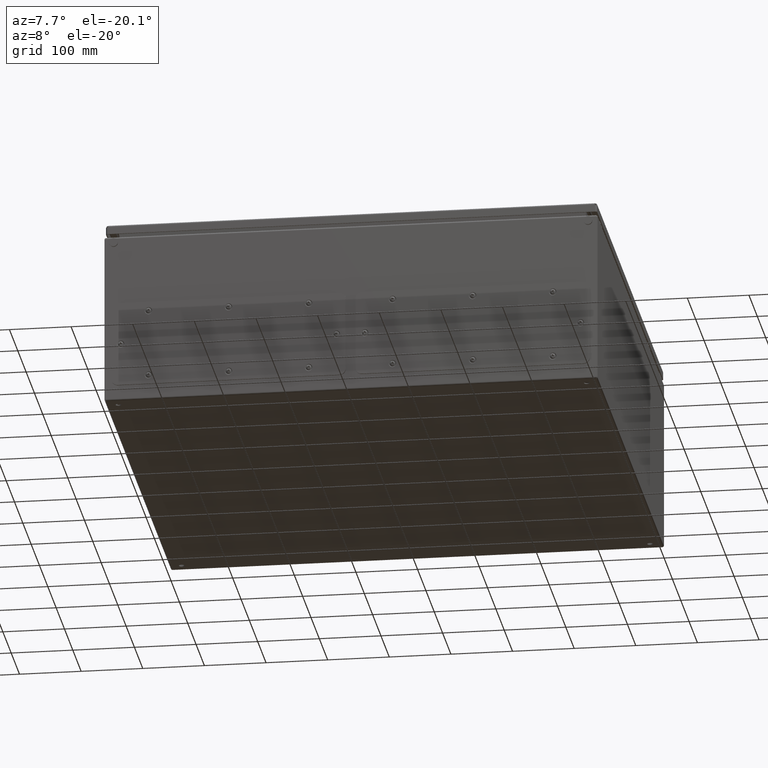
[diagram: clean part render]
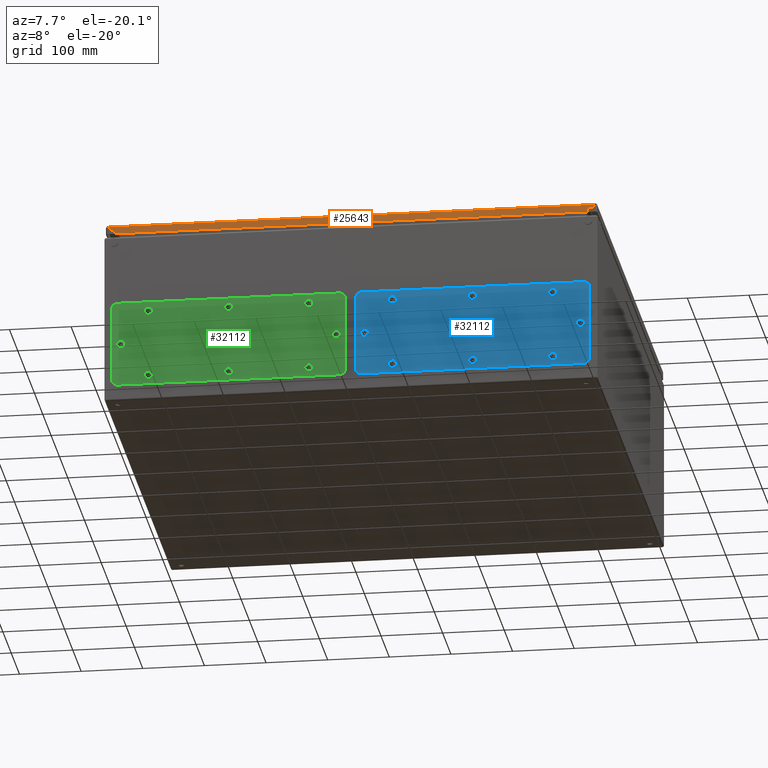
[diagram: same view with three faces highlighted in distinct colors, each labeled with its STEP entity id]
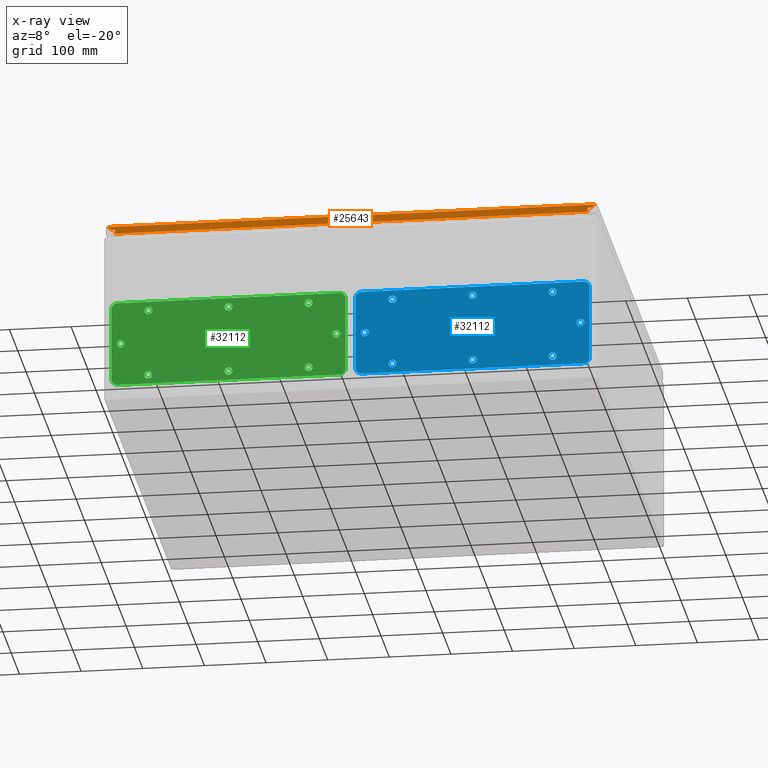
[diagram: x-ray of the same camera — body ghosted, the three highlighted faces saturated]
A machine part, auxiliary view with three faces highlighted in distinct colors.
The next image is the same camera in x-ray (body ghosted, the three faces saturated) — at least one of them is partly hidden behind the body in this view.
Their STEP definitions:

[orange] entity #25643 — the highlighted planar face has unit normal (0, 1, 0).
#24883 = CARTESIAN_POINT ( 'NONE',  ( 390.2500000000002300, -398.4999999999998300, 8.249999999999868500 ) ) ;
#25097 = DIRECTION ( 'NONE',  ( -0.7071067811865476800, 2.373230826650444500E-015, 0.7071067811865474600 ) ) ;
#25099 = VECTOR ( 'NONE', #25097, 1000.000000000000000 ) ;
#25101 = CARTESIAN_POINT ( 'NONE',  ( 397.0000000000002300, -398.4999999999998300, 1.499999999999945800 ) ) ;
#25103 = LINE ( 'NONE', #25101, #25099 ) ;
#25120 = DIRECTION ( 'NONE',  ( -1.352281394184117800E-016, 3.491483361109382100E-015, 1.000000000000000000 ) ) ;
#25121 = VECTOR ( 'NONE', #25120, 1000.000000000000000 ) ;
#25123 = CARTESIAN_POINT ( 'NONE',  ( 383.5000000000002300, -398.4999999999998300, 8.249999999999978700 ) ) ;
#25124 = LINE ( 'NONE', #25123, #25121 ) ;
#25130 = CARTESIAN_POINT ( 'NONE',  ( 383.5000000000002300, -398.4999999999997700, 14.99999999999995700 ) ) ;
#25155 = CARTESIAN_POINT ( 'NONE',  ( 395.2322330470335600, -398.4999999999998300, 3.267766952966599800 ) ) ;
#25199 = DIRECTION ( 'NONE',  ( -1.000000000000000000, -1.352281394184117800E-016, -1.352281394184113100E-016 ) ) ;
#25201 = VECTOR ( 'NONE', #25199, 1000.000000000000000 ) ;
#25203 = CARTESIAN_POINT ( 'NONE',  ( 390.2500000000002300, -398.4999999999998300, 8.249999999999978700 ) ) ;
#25204 = LINE ( 'NONE', #25203, #25201 ) ;
#25208 = CARTESIAN_POINT ( 'NONE',  ( 383.5000000000002300, -398.4999999999998300, 8.249999999999978700 ) ) ;
#25261 = DIRECTION ( 'NONE',  ( 0.7071067811865474600, 2.564472295430442400E-015, 0.7071067811865476800 ) ) ;
#25263 = VECTOR ( 'NONE', #25261, 1000.000000000000000 ) ;
#25264 = CARTESIAN_POINT ( 'NONE',  ( -397.0000000000002300, -398.4999999999999400, 1.499999999999834800 ) ) ;
#25266 = LINE ( 'NONE', #25264, #25263 ) ;
#25272 = CARTESIAN_POINT ( 'NONE',  ( -395.2322330470335600, -398.4999999999999400, 3.267766952966488800 ) ) ;
#25303 = LINE ( 'NONE', #25444, #25442 ) ;
#25306 = CARTESIAN_POINT ( 'NONE',  ( -383.5000000000002300, -398.4999999999998900, 14.99999999999984700 ) ) ;
#25349 = CARTESIAN_POINT ( 'NONE',  ( -390.2500000000002300, -398.4999999999999400, 8.249999999999868500 ) ) ;
#25351 = DIRECTION ( 'NONE',  ( 1.000000000000000000, 1.352281394184117800E-016, 1.352281394184113100E-016 ) ) ;
#25352 = VECTOR ( 'NONE', #25351, 1000.000000000000000 ) ;
#25354 = CARTESIAN_POINT ( 'NONE',  ( -390.2500000000002300, -398.4999999999999400, 8.249999999999868500 ) ) ;
#25355 = LINE ( 'NONE', #25354, #25352 ) ;
#25370 = DIRECTION ( 'NONE',  ( -1.352281394184113100E-016, 1.000000000000000000, -3.491483361109382100E-015 ) ) ;
#25372 = CARTESIAN_POINT ( 'NONE',  ( 396.9999999999998300, -398.4999999999998300, 1.500000000000112400 ) ) ;
#25373 = AXIS2_PLACEMENT_3D ( 'NONE', #25372, #25370, #25516 ) ;
#25375 = CIRCLE ( 'NONE', #25373, 2.500000000000002200 ) ;
#25378 = VERTEX_POINT ( 'NONE', #24883 ) ;
#25381 = CARTESIAN_POINT ( 'NONE',  ( 394.9999999999993700, -398.4999999999998300, 3.000000000000020400 ) ) ;
#25384 = DIRECTION ( 'NONE',  ( -1.000000000000000000, -1.352281394184113100E-016, -4.930380657631323800E-032 ) ) ;
#25385 = VECTOR ( 'NONE', #25384, 1000.000000000000000 ) ;
#25387 = CARTESIAN_POINT ( 'NONE',  ( -410.4999999999998900, -398.4999999999999400, 3.000000000000002700 ) ) ;
#25389 = LINE ( 'NONE', #25387, #25385 ) ;
#25417 = CARTESIAN_POINT ( 'NONE',  ( -383.5000000000002300, -398.4999999999999400, 8.249999999999868500 ) ) ;
#25419 = DIRECTION ( 'NONE',  ( -1.352281394184117800E-016, 3.491483361109382100E-015, 1.000000000000000000 ) ) ;
#25420 = VECTOR ( 'NONE', #25419, 1000.000000000000000 ) ;
#25422 = CARTESIAN_POINT ( 'NONE',  ( -383.5000000000002300, -398.4999999999999400, 8.249999999999868500 ) ) ;
#25423 = LINE ( 'NONE', #25422, #25420 ) ;
#25441 = DIRECTION ( 'NONE',  ( 1.000000000000000000, 1.352281394184113100E-016, 2.465190328815661900E-032 ) ) ;
#25442 = VECTOR ( 'NONE', #25441, 1000.000000000000000 ) ;
#25444 = CARTESIAN_POINT ( 'NONE',  ( -410.4999999999998900, -398.4999999999998900, 14.99999999999995700 ) ) ;
#25461 = DIRECTION ( 'NONE',  ( 1.000000000000000000, 1.352281394184117800E-016, 1.352281394184113100E-016 ) ) ;
#25462 = VERTEX_POINT ( 'NONE', #25130 ) ;
#25463 = DIRECTION ( 'NONE',  ( -1.352281394184113100E-016, 1.000000000000000000, -3.491483361109382100E-015 ) ) ;
#25464 = CARTESIAN_POINT ( 'NONE',  ( -410.4999999999998900, -398.4999999999998900, 14.99999999999995700 ) ) ;
#25466 = AXIS2_PLACEMENT_3D ( 'NONE', #25464, #25463, #25461 ) ;
#25467 = EDGE_CURVE ( 'NONE', #25493, #25462, #25124, .T. ) ;
#25468 = PLANE ( 'NONE',  #25466 ) ;
#25471 = FACE_OUTER_BOUND ( 'NONE', #25644, .T. ) ;
#25473 = DIRECTION ( 'NONE',  ( 1.000000000000000000, 0.0000000000000000000, 1.734723475976805600E-016 ) ) ;
#25474 = DIRECTION ( 'NONE',  ( 1.352281394184113100E-016, -1.000000000000000000, 3.491483361109382100E-015 ) ) ;
#25476 = AXIS2_PLACEMENT_3D ( 'NONE', #25498, #25474, #25473 ) ;
#25478 = CIRCLE ( 'NONE', #25476, 2.500000000000002200 ) ;
#25479 = EDGE_CURVE ( 'NONE', #25514, #25378, #25103, .T. ) ;
#25492 = CARTESIAN_POINT ( 'NONE',  ( -394.9999999999998300, -398.4999999999999400, 3.000000000000002700 ) ) ;
#25493 = VERTEX_POINT ( 'NONE', #25208 ) ;
#25496 = EDGE_CURVE ( 'NONE', #25378, #25493, #25204, .T. ) ;
#25498 = CARTESIAN_POINT ( 'NONE',  ( -396.9999999999998300, -398.4999999999999400, 1.500000000000001300 ) ) ;
#25514 = VERTEX_POINT ( 'NONE', #25155 ) ;
#25516 = DIRECTION ( 'NONE',  ( -1.000000000000000000, 0.0000000000000000000, -1.734723475976805600E-016 ) ) ;
#25526 = VERTEX_POINT ( 'NONE', #25272 ) ;
#25530 = EDGE_CURVE ( 'NONE', #25526, #25553, #25266, .T. ) ;
#25552 = EDGE_CURVE ( 'NONE', #25553, #25588, #25355, .T. ) ;
#25553 = VERTEX_POINT ( 'NONE', #25349 ) ;
#25576 = VERTEX_POINT ( 'NONE', #25306 ) ;
#25578 = EDGE_CURVE ( 'NONE', #25576, #25462, #25303, .T. ) ;
#25587 = EDGE_CURVE ( 'NONE', #25588, #25576, #25423, .T. ) ;
#25588 = VERTEX_POINT ( 'NONE', #25417 ) ;
#25603 = ORIENTED_EDGE ( 'NONE', *, *, #25604, .F. ) ;
#25604 = EDGE_CURVE ( 'NONE', #25605, #25635, #25389, .T. ) ;
#25605 = VERTEX_POINT ( 'NONE', #25381 ) ;
#25606 = ORIENTED_EDGE ( 'NONE', *, *, #25608, .T. ) ;
#25608 = EDGE_CURVE ( 'NONE', #25605, #25514, #25375, .T. ) ;
#25610 = ORIENTED_EDGE ( 'NONE', *, *, #25479, .T. ) ;
#25612 = ORIENTED_EDGE ( 'NONE', *, *, #25496, .T. ) ;
#25615 = ORIENTED_EDGE ( 'NONE', *, *, #25467, .T. ) ;
#25616 = ORIENTED_EDGE ( 'NONE', *, *, #25578, .F. ) ;
#25617 = ORIENTED_EDGE ( 'NONE', *, *, #25587, .F. ) ;
#25618 = ORIENTED_EDGE ( 'NONE', *, *, #25552, .F. ) ;
#25620 = ORIENTED_EDGE ( 'NONE', *, *, #25530, .F. ) ;
#25635 = VERTEX_POINT ( 'NONE', #25492 ) ;
#25639 = EDGE_CURVE ( 'NONE', #25635, #25526, #25478, .T. ) ;
#25643 = ADVANCED_FACE ( 'NONE', ( #25471 ), #25468, .F. ) ;
#25644 = EDGE_LOOP ( 'NONE', ( #25603, #25606, #25610, #25612, #25615, #25616, #25617, #25618, #25620, #25727 ) ) ;
#25727 = ORIENTED_EDGE ( 'NONE', *, *, #25639, .F. ) ;

[blue] entity #32112 — the highlighted planar face has unit normal (0, 1, -0).
#30966 = VERTEX_POINT ( 'NONE', #37409 ) ;
#30968 = EDGE_CURVE ( 'NONE', #30969, #30966, #37471, .T. ) ;
#30969 = VERTEX_POINT ( 'NONE', #37466 ) ;
#31009 = VERTEX_POINT ( 'NONE', #37484 ) ;
#31011 = EDGE_CURVE ( 'NONE', #31009, #31013, #37483, .T. ) ;
#31013 = VERTEX_POINT ( 'NONE', #37478 ) ;
#31161 = VERTEX_POINT ( 'NONE', #37676 ) ;
#31165 = EDGE_CURVE ( 'NONE', #31169, #31161, #37675, .T. ) ;
#31169 = VERTEX_POINT ( 'NONE', #37670 ) ;
#31329 = VERTEX_POINT ( 'NONE', #37909 ) ;
#31333 = EDGE_CURVE ( 'NONE', #31335, #31329, #37907, .T. ) ;
#31335 = VERTEX_POINT ( 'NONE', #37899 ) ;
#31547 = VERTEX_POINT ( 'NONE', #38155 ) ;
#31551 = EDGE_CURVE ( 'NONE', #31554, #31547, #38211, .T. ) ;
#31554 = VERTEX_POINT ( 'NONE', #38207 ) ;
#31698 = VERTEX_POINT ( 'NONE', #38363 ) ;
#31703 = EDGE_CURVE ( 'NONE', #31698, #31704, #38362, .T. ) ;
#31704 = VERTEX_POINT ( 'NONE', #38357 ) ;
#31737 = VERTEX_POINT ( 'NONE', #38383 ) ;
#31838 = EDGE_CURVE ( 'NONE', #31737, #31841, #38525, .T. ) ;
#31841 = VERTEX_POINT ( 'NONE', #38520 ) ;
#31981 = VERTEX_POINT ( 'NONE', #38694 ) ;
#32030 = VERTEX_POINT ( 'NONE', #38706 ) ;
#32032 = EDGE_CURVE ( 'NONE', #32030, #32034, #38705, .T. ) ;
#32034 = VERTEX_POINT ( 'NONE', #38700 ) ;
#32036 = VERTEX_POINT ( 'NONE', #38699 ) ;
#32039 = EDGE_CURVE ( 'NONE', #32068, #32036, #38698, .T. ) ;
#32068 = VERTEX_POINT ( 'NONE', #38793 ) ;
#32070 = EDGE_CURVE ( 'NONE', #32097, #32068, #38791, .T. ) ;
#32079 = EDGE_CURVE ( 'NONE', #32080, #31981, #38781, .T. ) ;
#32080 = VERTEX_POINT ( 'NONE', #38776 ) ;
#32097 = VERTEX_POINT ( 'NONE', #38826 ) ;
#32102 = EDGE_CURVE ( 'NONE', #31981, #32097, #38825, .T. ) ;
#32106 = EDGE_CURVE ( 'NONE', #32140, #32080, #38816, .T. ) ;
#32112 = ADVANCED_FACE ( 'NONE', ( #38812, #38811, #38810, #38809, #38808, #38806, #38805, #38804, #38803 ), #38802, .F. ) ;
#32115 = EDGE_LOOP ( 'NONE', ( #32116, #32117 ) ) ;
#32116 = ORIENTED_EDGE ( 'NONE', *, *, #30968, .T. ) ;
#32117 = ORIENTED_EDGE ( 'NONE', *, *, #32119, .T. ) ;
#32119 = EDGE_CURVE ( 'NONE', #30966, #30969, #38796, .T. ) ;
#32122 = EDGE_LOOP ( 'NONE', ( #32223, #32228 ) ) ;
#32140 = VERTEX_POINT ( 'NONE', #38846 ) ;
#32142 = EDGE_CURVE ( 'NONE', #32167, #32140, #38844, .T. ) ;
#32149 = VERTEX_POINT ( 'NONE', #38833 ) ;
#32153 = EDGE_CURVE ( 'NONE', #32036, #32149, #38901, .T. ) ;
#32167 = VERTEX_POINT ( 'NONE', #38882 ) ;
#32170 = EDGE_CURVE ( 'NONE', #32149, #32167, #38881, .T. ) ;
#32184 = EDGE_LOOP ( 'NONE', ( #32186, #32187, #32188, #32189, #32191, #32193, #32195, #32198 ) ) ;
#32186 = ORIENTED_EDGE ( 'NONE', *, *, #32079, .T. ) ;
#32187 = ORIENTED_EDGE ( 'NONE', *, *, #32102, .T. ) ;
#32188 = ORIENTED_EDGE ( 'NONE', *, *, #32070, .T. ) ;
#32189 = ORIENTED_EDGE ( 'NONE', *, *, #32039, .T. ) ;
#32191 = ORIENTED_EDGE ( 'NONE', *, *, #32153, .T. ) ;
#32193 = ORIENTED_EDGE ( 'NONE', *, *, #32170, .T. ) ;
#32195 = ORIENTED_EDGE ( 'NONE', *, *, #32142, .T. ) ;
#32198 = ORIENTED_EDGE ( 'NONE', *, *, #32106, .T. ) ;
#32202 = EDGE_CURVE ( 'NONE', #31547, #31554, #38922, .T. ) ;
#32205 = EDGE_LOOP ( 'NONE', ( #32208, #32210 ) ) ;
#32208 = ORIENTED_EDGE ( 'NONE', *, *, #32209, .F. ) ;
#32209 = EDGE_CURVE ( 'NONE', #31704, #31698, #38917, .T. ) ;
#32210 = ORIENTED_EDGE ( 'NONE', *, *, #31703, .F. ) ;
#32211 = EDGE_LOOP ( 'NONE', ( #32213, #32217 ) ) ;
#32213 = ORIENTED_EDGE ( 'NONE', *, *, #32215, .F. ) ;
#32215 = EDGE_CURVE ( 'NONE', #31841, #31737, #38912, .T. ) ;
#32217 = ORIENTED_EDGE ( 'NONE', *, *, #31838, .F. ) ;
#32220 = EDGE_LOOP ( 'NONE', ( #32221, #32328 ) ) ;
#32221 = ORIENTED_EDGE ( 'NONE', *, *, #32222, .F. ) ;
#32222 = EDGE_CURVE ( 'NONE', #32034, #32030, #38907, .T. ) ;
#32223 = ORIENTED_EDGE ( 'NONE', *, *, #32225, .F. ) ;
#32225 = EDGE_CURVE ( 'NONE', #31013, #31009, #38969, .T. ) ;
#32228 = ORIENTED_EDGE ( 'NONE', *, *, #31011, .F. ) ;
#32230 = EDGE_LOOP ( 'NONE', ( #32231, #32232 ) ) ;
#32231 = ORIENTED_EDGE ( 'NONE', *, *, #31165, .T. ) ;
#32232 = ORIENTED_EDGE ( 'NONE', *, *, #32233, .T. ) ;
#32233 = EDGE_CURVE ( 'NONE', #31161, #31169, #38964, .T. ) ;
#32237 = EDGE_LOOP ( 'NONE', ( #32239, #32241 ) ) ;
#32239 = ORIENTED_EDGE ( 'NONE', *, *, #31333, .T. ) ;
#32241 = ORIENTED_EDGE ( 'NONE', *, *, #32242, .T. ) ;
#32242 = EDGE_CURVE ( 'NONE', #31329, #31335, #38959, .T. ) ;
#32243 = EDGE_LOOP ( 'NONE', ( #32245, #32246 ) ) ;
#32245 = ORIENTED_EDGE ( 'NONE', *, *, #31551, .T. ) ;
#32246 = ORIENTED_EDGE ( 'NONE', *, *, #32202, .T. ) ;
#32328 = ORIENTED_EDGE ( 'NONE', *, *, #32032, .F. ) ;
#37409 = CARTESIAN_POINT ( 'NONE',  ( -129.8758732769581500, -61.38233695593505200, 1.499999999907686500 ) ) ;
#37466 = CARTESIAN_POINT ( 'NONE',  ( -130.1241267230419100, -48.61766304406484800, 1.499999999907686500 ) ) ;
#37467 = DIRECTION ( 'NONE',  ( -0.01944479827874692100, 0.9998109320366021000, 0.0000000000000000000 ) ) ;
#37468 = DIRECTION ( 'NONE',  ( 0.0000000000000000000, 0.0000000000000000000, -1.000000000000000000 ) ) ;
#37469 = CARTESIAN_POINT ( 'NONE',  ( -130.0000000000000300, -54.99999999999995000, 1.499999999907686300 ) ) ;
#37470 = AXIS2_PLACEMENT_3D ( 'NONE', #37469, #37468, #37467 ) ;
#37471 = CIRCLE ( 'NONE', #37470, 6.383543879575676700 ) ;
#37478 = CARTESIAN_POINT ( 'NONE',  ( 130.1241267230419100, -48.61766304406484800, 1.499999999907686500 ) ) ;
#37479 = DIRECTION ( 'NONE',  ( 0.01944479827874692100, 0.9998109320366021000, 0.0000000000000000000 ) ) ;
#37480 = DIRECTION ( 'NONE',  ( 0.0000000000000000000, 0.0000000000000000000, 1.000000000000000000 ) ) ;
#37481 = CARTESIAN_POINT ( 'NONE',  ( 130.0000000000000300, -54.99999999999995000, 1.499999999907686300 ) ) ;
#37482 = AXIS2_PLACEMENT_3D ( 'NONE', #37481, #37480, #37479 ) ;
#37483 = CIRCLE ( 'NONE', #37482, 6.383543879575676700 ) ;
#37484 = CARTESIAN_POINT ( 'NONE',  ( 129.8758732769581500, -61.38233695593505200, 1.499999999907686500 ) ) ;
#37670 = CARTESIAN_POINT ( 'NONE',  ( -0.1241267230418952500, -48.61766304406489100, 1.499999999907686500 ) ) ;
#37671 = DIRECTION ( 'NONE',  ( -0.01944479827874607400, 0.9998109320366021000, 0.0000000000000000000 ) ) ;
#37672 = DIRECTION ( 'NONE',  ( 0.0000000000000000000, 0.0000000000000000000, -1.000000000000000000 ) ) ;
#37673 = CARTESIAN_POINT ( 'NONE',  ( -2.208518486838413600E-014, -54.99999999999999300, 1.499999999907686300 ) ) ;
#37674 = AXIS2_PLACEMENT_3D ( 'NONE', #37673, #37672, #37671 ) ;
#37675 = CIRCLE ( 'NONE', #37674, 6.383543879575676700 ) ;
#37676 = CARTESIAN_POINT ( 'NONE',  ( 0.1241267230418518200, -61.38233695593509500, 1.499999999907686500 ) ) ;
#37899 = CARTESIAN_POINT ( 'NONE',  ( 130.1241267230419100, 48.61766304406484800, 1.499999999907686500 ) ) ;
#37903 = DIRECTION ( 'NONE',  ( 0.01944479827874692100, -0.9998109320366021000, 0.0000000000000000000 ) ) ;
#37904 = DIRECTION ( 'NONE',  ( 0.0000000000000000000, 0.0000000000000000000, -1.000000000000000000 ) ) ;
#37905 = CARTESIAN_POINT ( 'NONE',  ( 130.0000000000000300, 54.99999999999995000, 1.499999999907686300 ) ) ;
#37906 = AXIS2_PLACEMENT_3D ( 'NONE', #37905, #37904, #37903 ) ;
#37907 = CIRCLE ( 'NONE', #37906, 6.383543879575676700 ) ;
#37909 = CARTESIAN_POINT ( 'NONE',  ( 129.8758732769581500, 61.38233695593505200, 1.499999999907686500 ) ) ;
#38152 = CARTESIAN_POINT ( 'NONE',  ( 175.0000000000000900, 7.052915043501256800E-014, 1.499999999907686300 ) ) ;
#38155 = CARTESIAN_POINT ( 'NONE',  ( 174.8758732769582000, 6.382336955935173300, 1.499999999907686500 ) ) ;
#38207 = CARTESIAN_POINT ( 'NONE',  ( 175.1241267230419400, -6.382336955935032900, 1.499999999907686500 ) ) ;
#38208 = DIRECTION ( 'NONE',  ( 0.01944479827874692100, -0.9998109320366021000, 0.0000000000000000000 ) ) ;
#38209 = DIRECTION ( 'NONE',  ( 0.0000000000000000000, 0.0000000000000000000, -1.000000000000000000 ) ) ;
#38210 = AXIS2_PLACEMENT_3D ( 'NONE', #38152, #38209, #38208 ) ;
#38211 = CIRCLE ( 'NONE', #38210, 6.383543879575675800 ) ;
#38357 = CARTESIAN_POINT ( 'NONE',  ( -0.1241267230418952500, 48.61766304406489100, 1.499999999907686500 ) ) ;
#38358 = DIRECTION ( 'NONE',  ( -0.01944479827874607400, -0.9998109320366021000, 0.0000000000000000000 ) ) ;
#38359 = DIRECTION ( 'NONE',  ( 0.0000000000000000000, 0.0000000000000000000, 1.000000000000000000 ) ) ;
#38360 = CARTESIAN_POINT ( 'NONE',  ( -2.208518486838413600E-014, 54.99999999999999300, 1.499999999907686300 ) ) ;
#38361 = AXIS2_PLACEMENT_3D ( 'NONE', #38360, #38359, #38358 ) ;
#38362 = CIRCLE ( 'NONE', #38361, 6.383543879575676700 ) ;
#38363 = CARTESIAN_POINT ( 'NONE',  ( 0.1241267230418502800, 61.38233695593509500, 1.499999999907686500 ) ) ;
#38383 = CARTESIAN_POINT ( 'NONE',  ( -129.8758732769581500, 61.38233695593505200, 1.499999999907686500 ) ) ;
#38520 = CARTESIAN_POINT ( 'NONE',  ( -130.1241267230419100, 48.61766304406484800, 1.499999999907686500 ) ) ;
#38521 = DIRECTION ( 'NONE',  ( -0.01944479827874692100, -0.9998109320366021000, 0.0000000000000000000 ) ) ;
#38522 = DIRECTION ( 'NONE',  ( 0.0000000000000000000, 0.0000000000000000000, 1.000000000000000000 ) ) ;
#38523 = CARTESIAN_POINT ( 'NONE',  ( -130.0000000000000300, 54.99999999999995000, 1.499999999907686300 ) ) ;
#38524 = AXIS2_PLACEMENT_3D ( 'NONE', #38523, #38522, #38521 ) ;
#38525 = CIRCLE ( 'NONE', #38524, 6.383543879575676700 ) ;
#38694 = CARTESIAN_POINT ( 'NONE',  ( -190.0000000000000900, 60.00000000000002100, 1.500000000000000000 ) ) ;
#38698 = LINE ( 'NONE', #38761, #38760 ) ;
#38699 = CARTESIAN_POINT ( 'NONE',  ( 180.0000000000000900, -69.99999999999992900, 1.500000000000000000 ) ) ;
#38700 = CARTESIAN_POINT ( 'NONE',  ( -175.1241267230419400, -6.382336955935032900, 1.499999999907686500 ) ) ;
#38701 = DIRECTION ( 'NONE',  ( -0.01944479827874692100, -0.9998109320366021000, 0.0000000000000000000 ) ) ;
#38702 = DIRECTION ( 'NONE',  ( 0.0000000000000000000, 0.0000000000000000000, 1.000000000000000000 ) ) ;
#38703 = CARTESIAN_POINT ( 'NONE',  ( -175.0000000000000900, 7.052915043501256800E-014, 1.499999999907686300 ) ) ;
#38704 = AXIS2_PLACEMENT_3D ( 'NONE', #38703, #38702, #38701 ) ;
#38705 = CIRCLE ( 'NONE', #38704, 6.383543879575675800 ) ;
#38706 = CARTESIAN_POINT ( 'NONE',  ( -174.8758732769582000, 6.382336955935173300, 1.499999999907686500 ) ) ;
#38759 = DIRECTION ( 'NONE',  ( 1.000000000000000000, 1.156482317317871200E-016, 0.0000000000000000000 ) ) ;
#38760 = VECTOR ( 'NONE', #38759, 1000.000000000000000 ) ;
#38761 = CARTESIAN_POINT ( 'NONE',  ( -180.0000000000000300, -69.99999999999997200, 1.500000000000000000 ) ) ;
#38776 = CARTESIAN_POINT ( 'NONE',  ( -180.0000000000000300, 69.99999999999997200, 1.500000000000000000 ) ) ;
#38777 = DIRECTION ( 'NONE',  ( -1.000000000000000000, 0.0000000000000000000, 0.0000000000000000000 ) ) ;
#38778 = DIRECTION ( 'NONE',  ( 0.0000000000000000000, 0.0000000000000000000, 1.000000000000000000 ) ) ;
#38779 = CARTESIAN_POINT ( 'NONE',  ( -180.0000000000000300, 60.00000000000000700, 1.500000000000000000 ) ) ;
#38780 = AXIS2_PLACEMENT_3D ( 'NONE', #38779, #38778, #38777 ) ;
#38781 = CIRCLE ( 'NONE', #38780, 10.00000000000000900 ) ;
#38787 = DIRECTION ( 'NONE',  ( 1.000000000000000000, 0.0000000000000000000, 0.0000000000000000000 ) ) ;
#38788 = DIRECTION ( 'NONE',  ( 0.0000000000000000000, 0.0000000000000000000, 1.000000000000000000 ) ) ;
#38789 = CARTESIAN_POINT ( 'NONE',  ( -180.0000000000000300, -60.00000000000000700, 1.500000000000000000 ) ) ;
#38790 = AXIS2_PLACEMENT_3D ( 'NONE', #38789, #38788, #38787 ) ;
#38791 = CIRCLE ( 'NONE', #38790, 9.999999999999980500 ) ;
#38793 = CARTESIAN_POINT ( 'NONE',  ( -180.0000000000000300, -69.99999999999998600, 1.500000000000000000 ) ) ;
#38796 = CIRCLE ( 'NONE', #38865, 6.383543879575676700 ) ;
#38798 = DIRECTION ( 'NONE',  ( -1.000000000000000000, 0.0000000000000000000, 0.0000000000000000000 ) ) ;
#38799 = DIRECTION ( 'NONE',  ( 0.0000000000000000000, 0.0000000000000000000, -1.000000000000000000 ) ) ;
#38800 = CARTESIAN_POINT ( 'NONE',  ( -180.0000000000000300, 60.00000000000000700, 1.500000000000000000 ) ) ;
#38801 = AXIS2_PLACEMENT_3D ( 'NONE', #38800, #38799, #38798 ) ;
#38802 = PLANE ( 'NONE',  #38801 ) ;
#38803 = FACE_OUTER_BOUND ( 'NONE', #32184, .T. ) ;
#38804 = FACE_BOUND ( 'NONE', #32220, .T. ) ;
#38805 = FACE_BOUND ( 'NONE', #32211, .T. ) ;
#38806 = FACE_BOUND ( 'NONE', #32205, .T. ) ;
#38808 = FACE_BOUND ( 'NONE', #32243, .T. ) ;
#38809 = FACE_BOUND ( 'NONE', #32237, .T. ) ;
#38810 = FACE_BOUND ( 'NONE', #32230, .T. ) ;
#38811 = FACE_BOUND ( 'NONE', #32122, .T. ) ;
#38812 = FACE_BOUND ( 'NONE', #32115, .T. ) ;
#38813 = DIRECTION ( 'NONE',  ( -1.000000000000000000, 1.156482317317871200E-016, 0.0000000000000000000 ) ) ;
#38814 = VECTOR ( 'NONE', #38813, 1000.000000000000000 ) ;
#38815 = CARTESIAN_POINT ( 'NONE',  ( -180.0000000000000300, 69.99999999999997200, 1.500000000000000000 ) ) ;
#38816 = LINE ( 'NONE', #38815, #38814 ) ;
#38822 = DIRECTION ( 'NONE',  ( 4.625929269271481000E-016, -1.000000000000000000, 0.0000000000000000000 ) ) ;
#38823 = VECTOR ( 'NONE', #38822, 1000.000000000000000 ) ;
#38824 = CARTESIAN_POINT ( 'NONE',  ( -190.0000000000000900, 60.00000000000002100, 1.500000000000000000 ) ) ;
#38825 = LINE ( 'NONE', #38824, #38823 ) ;
#38826 = CARTESIAN_POINT ( 'NONE',  ( -190.0000000000000300, -60.00000000000011400, 1.500000000000000000 ) ) ;
#38832 = CARTESIAN_POINT ( 'NONE',  ( 180.0000000000000900, -59.99999999999996400, 1.500000000000000000 ) ) ;
#38833 = CARTESIAN_POINT ( 'NONE',  ( 190.0000000000000600, -60.00000000000006400, 1.500000000000000000 ) ) ;
#38840 = DIRECTION ( 'NONE',  ( 1.000000000000000000, 0.0000000000000000000, 0.0000000000000000000 ) ) ;
#38841 = DIRECTION ( 'NONE',  ( 0.0000000000000000000, 0.0000000000000000000, 1.000000000000000000 ) ) ;
#38842 = CARTESIAN_POINT ( 'NONE',  ( 180.0000000000000900, 59.99999999999996400, 1.500000000000000000 ) ) ;
#38843 = AXIS2_PLACEMENT_3D ( 'NONE', #38842, #38841, #38840 ) ;
#38844 = CIRCLE ( 'NONE', #38843, 9.999999999999980500 ) ;
#38846 = CARTESIAN_POINT ( 'NONE',  ( 180.0000000000000900, 69.99999999999995700, 1.500000000000000000 ) ) ;
#38862 = DIRECTION ( 'NONE',  ( -0.01944479827874692100, 0.9998109320366021000, 0.0000000000000000000 ) ) ;
#38863 = DIRECTION ( 'NONE',  ( 0.0000000000000000000, 0.0000000000000000000, -1.000000000000000000 ) ) ;
#38864 = CARTESIAN_POINT ( 'NONE',  ( -130.0000000000000300, -54.99999999999995000, 1.499999999907686300 ) ) ;
#38865 = AXIS2_PLACEMENT_3D ( 'NONE', #38864, #38863, #38862 ) ;
#38878 = DIRECTION ( 'NONE',  ( 0.0000000000000000000, 1.000000000000000000, 0.0000000000000000000 ) ) ;
#38879 = VECTOR ( 'NONE', #38878, 1000.000000000000000 ) ;
#38880 = CARTESIAN_POINT ( 'NONE',  ( 190.0000000000000900, 60.00000000000006400, 1.500000000000000000 ) ) ;
#38881 = LINE ( 'NONE', #38880, #38879 ) ;
#38882 = CARTESIAN_POINT ( 'NONE',  ( 190.0000000000000900, 60.00000000000006400, 1.500000000000000000 ) ) ;
#38898 = DIRECTION ( 'NONE',  ( 1.000000000000000000, 0.0000000000000000000, 0.0000000000000000000 ) ) ;
#38899 = DIRECTION ( 'NONE',  ( 0.0000000000000000000, 0.0000000000000000000, 1.000000000000000000 ) ) ;
#38900 = AXIS2_PLACEMENT_3D ( 'NONE', #38832, #38899, #38898 ) ;
#38901 = CIRCLE ( 'NONE', #38900, 9.999999999999980500 ) ;
#38903 = DIRECTION ( 'NONE',  ( -0.01944479827874692100, -0.9998109320366021000, 0.0000000000000000000 ) ) ;
#38904 = DIRECTION ( 'NONE',  ( 0.0000000000000000000, 0.0000000000000000000, 1.000000000000000000 ) ) ;
#38905 = CARTESIAN_POINT ( 'NONE',  ( -175.0000000000000900, 7.052915043501256800E-014, 1.499999999907686300 ) ) ;
#38906 = AXIS2_PLACEMENT_3D ( 'NONE', #38905, #38904, #38903 ) ;
#38907 = CIRCLE ( 'NONE', #38906, 6.383543879575675800 ) ;
#38908 = DIRECTION ( 'NONE',  ( -0.01944479827874692100, -0.9998109320366021000, 0.0000000000000000000 ) ) ;
#38909 = DIRECTION ( 'NONE',  ( 0.0000000000000000000, 0.0000000000000000000, 1.000000000000000000 ) ) ;
#38910 = CARTESIAN_POINT ( 'NONE',  ( -130.0000000000000300, 54.99999999999995000, 1.499999999907686300 ) ) ;
#38911 = AXIS2_PLACEMENT_3D ( 'NONE', #38910, #38909, #38908 ) ;
#38912 = CIRCLE ( 'NONE', #38911, 6.383543879575676700 ) ;
#38913 = DIRECTION ( 'NONE',  ( -0.01944479827874607400, -0.9998109320366021000, 0.0000000000000000000 ) ) ;
#38914 = DIRECTION ( 'NONE',  ( 0.0000000000000000000, 0.0000000000000000000, 1.000000000000000000 ) ) ;
#38915 = CARTESIAN_POINT ( 'NONE',  ( -2.208518486838413600E-014, 54.99999999999999300, 1.499999999907686300 ) ) ;
#38916 = AXIS2_PLACEMENT_3D ( 'NONE', #38915, #38914, #38913 ) ;
#38917 = CIRCLE ( 'NONE', #38916, 6.383543879575676700 ) ;
#38918 = DIRECTION ( 'NONE',  ( 0.01944479827874692100, -0.9998109320366021000, 0.0000000000000000000 ) ) ;
#38919 = DIRECTION ( 'NONE',  ( 0.0000000000000000000, 0.0000000000000000000, -1.000000000000000000 ) ) ;
#38920 = CARTESIAN_POINT ( 'NONE',  ( 175.0000000000000900, 7.052915043501256800E-014, 1.499999999907686300 ) ) ;
#38921 = AXIS2_PLACEMENT_3D ( 'NONE', #38920, #38919, #38918 ) ;
#38922 = CIRCLE ( 'NONE', #38921, 6.383543879575675800 ) ;
#38955 = DIRECTION ( 'NONE',  ( 0.01944479827874692100, -0.9998109320366021000, 0.0000000000000000000 ) ) ;
#38956 = DIRECTION ( 'NONE',  ( 0.0000000000000000000, 0.0000000000000000000, -1.000000000000000000 ) ) ;
#38957 = CARTESIAN_POINT ( 'NONE',  ( 130.0000000000000300, 54.99999999999995000, 1.499999999907686300 ) ) ;
#38958 = AXIS2_PLACEMENT_3D ( 'NONE', #38957, #38956, #38955 ) ;
#38959 = CIRCLE ( 'NONE', #38958, 6.383543879575676700 ) ;
#38960 = DIRECTION ( 'NONE',  ( -0.01944479827874607400, 0.9998109320366021000, 0.0000000000000000000 ) ) ;
#38961 = DIRECTION ( 'NONE',  ( 0.0000000000000000000, 0.0000000000000000000, -1.000000000000000000 ) ) ;
#38962 = CARTESIAN_POINT ( 'NONE',  ( -2.208518486838413600E-014, -54.99999999999999300, 1.499999999907686300 ) ) ;
#38963 = AXIS2_PLACEMENT_3D ( 'NONE', #38962, #38961, #38960 ) ;
#38964 = CIRCLE ( 'NONE', #38963, 6.383543879575676700 ) ;
#38965 = DIRECTION ( 'NONE',  ( 0.01944479827874692100, 0.9998109320366021000, 0.0000000000000000000 ) ) ;
#38966 = DIRECTION ( 'NONE',  ( 0.0000000000000000000, 0.0000000000000000000, 1.000000000000000000 ) ) ;
#38967 = CARTESIAN_POINT ( 'NONE',  ( 130.0000000000000300, -54.99999999999995000, 1.499999999907686300 ) ) ;
#38968 = AXIS2_PLACEMENT_3D ( 'NONE', #38967, #38966, #38965 ) ;
#38969 = CIRCLE ( 'NONE', #38968, 6.383543879575676700 ) ;

[green] entity #32112 — the highlighted planar face has unit normal (0, 1, -0).
#30966 = VERTEX_POINT ( 'NONE', #37409 ) ;
#30968 = EDGE_CURVE ( 'NONE', #30969, #30966, #37471, .T. ) ;
#30969 = VERTEX_POINT ( 'NONE', #37466 ) ;
#31009 = VERTEX_POINT ( 'NONE', #37484 ) ;
#31011 = EDGE_CURVE ( 'NONE', #31009, #31013, #37483, .T. ) ;
#31013 = VERTEX_POINT ( 'NONE', #37478 ) ;
#31161 = VERTEX_POINT ( 'NONE', #37676 ) ;
#31165 = EDGE_CURVE ( 'NONE', #31169, #31161, #37675, .T. ) ;
#31169 = VERTEX_POINT ( 'NONE', #37670 ) ;
#31329 = VERTEX_POINT ( 'NONE', #37909 ) ;
#31333 = EDGE_CURVE ( 'NONE', #31335, #31329, #37907, .T. ) ;
#31335 = VERTEX_POINT ( 'NONE', #37899 ) ;
#31547 = VERTEX_POINT ( 'NONE', #38155 ) ;
#31551 = EDGE_CURVE ( 'NONE', #31554, #31547, #38211, .T. ) ;
#31554 = VERTEX_POINT ( 'NONE', #38207 ) ;
#31698 = VERTEX_POINT ( 'NONE', #38363 ) ;
#31703 = EDGE_CURVE ( 'NONE', #31698, #31704, #38362, .T. ) ;
#31704 = VERTEX_POINT ( 'NONE', #38357 ) ;
#31737 = VERTEX_POINT ( 'NONE', #38383 ) ;
#31838 = EDGE_CURVE ( 'NONE', #31737, #31841, #38525, .T. ) ;
#31841 = VERTEX_POINT ( 'NONE', #38520 ) ;
#31981 = VERTEX_POINT ( 'NONE', #38694 ) ;
#32030 = VERTEX_POINT ( 'NONE', #38706 ) ;
#32032 = EDGE_CURVE ( 'NONE', #32030, #32034, #38705, .T. ) ;
#32034 = VERTEX_POINT ( 'NONE', #38700 ) ;
#32036 = VERTEX_POINT ( 'NONE', #38699 ) ;
#32039 = EDGE_CURVE ( 'NONE', #32068, #32036, #38698, .T. ) ;
#32068 = VERTEX_POINT ( 'NONE', #38793 ) ;
#32070 = EDGE_CURVE ( 'NONE', #32097, #32068, #38791, .T. ) ;
#32079 = EDGE_CURVE ( 'NONE', #32080, #31981, #38781, .T. ) ;
#32080 = VERTEX_POINT ( 'NONE', #38776 ) ;
#32097 = VERTEX_POINT ( 'NONE', #38826 ) ;
#32102 = EDGE_CURVE ( 'NONE', #31981, #32097, #38825, .T. ) ;
#32106 = EDGE_CURVE ( 'NONE', #32140, #32080, #38816, .T. ) ;
#32112 = ADVANCED_FACE ( 'NONE', ( #38812, #38811, #38810, #38809, #38808, #38806, #38805, #38804, #38803 ), #38802, .F. ) ;
#32115 = EDGE_LOOP ( 'NONE', ( #32116, #32117 ) ) ;
#32116 = ORIENTED_EDGE ( 'NONE', *, *, #30968, .T. ) ;
#32117 = ORIENTED_EDGE ( 'NONE', *, *, #32119, .T. ) ;
#32119 = EDGE_CURVE ( 'NONE', #30966, #30969, #38796, .T. ) ;
#32122 = EDGE_LOOP ( 'NONE', ( #32223, #32228 ) ) ;
#32140 = VERTEX_POINT ( 'NONE', #38846 ) ;
#32142 = EDGE_CURVE ( 'NONE', #32167, #32140, #38844, .T. ) ;
#32149 = VERTEX_POINT ( 'NONE', #38833 ) ;
#32153 = EDGE_CURVE ( 'NONE', #32036, #32149, #38901, .T. ) ;
#32167 = VERTEX_POINT ( 'NONE', #38882 ) ;
#32170 = EDGE_CURVE ( 'NONE', #32149, #32167, #38881, .T. ) ;
#32184 = EDGE_LOOP ( 'NONE', ( #32186, #32187, #32188, #32189, #32191, #32193, #32195, #32198 ) ) ;
#32186 = ORIENTED_EDGE ( 'NONE', *, *, #32079, .T. ) ;
#32187 = ORIENTED_EDGE ( 'NONE', *, *, #32102, .T. ) ;
#32188 = ORIENTED_EDGE ( 'NONE', *, *, #32070, .T. ) ;
#32189 = ORIENTED_EDGE ( 'NONE', *, *, #32039, .T. ) ;
#32191 = ORIENTED_EDGE ( 'NONE', *, *, #32153, .T. ) ;
#32193 = ORIENTED_EDGE ( 'NONE', *, *, #32170, .T. ) ;
#32195 = ORIENTED_EDGE ( 'NONE', *, *, #32142, .T. ) ;
#32198 = ORIENTED_EDGE ( 'NONE', *, *, #32106, .T. ) ;
#32202 = EDGE_CURVE ( 'NONE', #31547, #31554, #38922, .T. ) ;
#32205 = EDGE_LOOP ( 'NONE', ( #32208, #32210 ) ) ;
#32208 = ORIENTED_EDGE ( 'NONE', *, *, #32209, .F. ) ;
#32209 = EDGE_CURVE ( 'NONE', #31704, #31698, #38917, .T. ) ;
#32210 = ORIENTED_EDGE ( 'NONE', *, *, #31703, .F. ) ;
#32211 = EDGE_LOOP ( 'NONE', ( #32213, #32217 ) ) ;
#32213 = ORIENTED_EDGE ( 'NONE', *, *, #32215, .F. ) ;
#32215 = EDGE_CURVE ( 'NONE', #31841, #31737, #38912, .T. ) ;
#32217 = ORIENTED_EDGE ( 'NONE', *, *, #31838, .F. ) ;
#32220 = EDGE_LOOP ( 'NONE', ( #32221, #32328 ) ) ;
#32221 = ORIENTED_EDGE ( 'NONE', *, *, #32222, .F. ) ;
#32222 = EDGE_CURVE ( 'NONE', #32034, #32030, #38907, .T. ) ;
#32223 = ORIENTED_EDGE ( 'NONE', *, *, #32225, .F. ) ;
#32225 = EDGE_CURVE ( 'NONE', #31013, #31009, #38969, .T. ) ;
#32228 = ORIENTED_EDGE ( 'NONE', *, *, #31011, .F. ) ;
#32230 = EDGE_LOOP ( 'NONE', ( #32231, #32232 ) ) ;
#32231 = ORIENTED_EDGE ( 'NONE', *, *, #31165, .T. ) ;
#32232 = ORIENTED_EDGE ( 'NONE', *, *, #32233, .T. ) ;
#32233 = EDGE_CURVE ( 'NONE', #31161, #31169, #38964, .T. ) ;
#32237 = EDGE_LOOP ( 'NONE', ( #32239, #32241 ) ) ;
#32239 = ORIENTED_EDGE ( 'NONE', *, *, #31333, .T. ) ;
#32241 = ORIENTED_EDGE ( 'NONE', *, *, #32242, .T. ) ;
#32242 = EDGE_CURVE ( 'NONE', #31329, #31335, #38959, .T. ) ;
#32243 = EDGE_LOOP ( 'NONE', ( #32245, #32246 ) ) ;
#32245 = ORIENTED_EDGE ( 'NONE', *, *, #31551, .T. ) ;
#32246 = ORIENTED_EDGE ( 'NONE', *, *, #32202, .T. ) ;
#32328 = ORIENTED_EDGE ( 'NONE', *, *, #32032, .F. ) ;
#37409 = CARTESIAN_POINT ( 'NONE',  ( -129.8758732769581500, -61.38233695593505200, 1.499999999907686500 ) ) ;
#37466 = CARTESIAN_POINT ( 'NONE',  ( -130.1241267230419100, -48.61766304406484800, 1.499999999907686500 ) ) ;
#37467 = DIRECTION ( 'NONE',  ( -0.01944479827874692100, 0.9998109320366021000, 0.0000000000000000000 ) ) ;
#37468 = DIRECTION ( 'NONE',  ( 0.0000000000000000000, 0.0000000000000000000, -1.000000000000000000 ) ) ;
#37469 = CARTESIAN_POINT ( 'NONE',  ( -130.0000000000000300, -54.99999999999995000, 1.499999999907686300 ) ) ;
#37470 = AXIS2_PLACEMENT_3D ( 'NONE', #37469, #37468, #37467 ) ;
#37471 = CIRCLE ( 'NONE', #37470, 6.383543879575676700 ) ;
#37478 = CARTESIAN_POINT ( 'NONE',  ( 130.1241267230419100, -48.61766304406484800, 1.499999999907686500 ) ) ;
#37479 = DIRECTION ( 'NONE',  ( 0.01944479827874692100, 0.9998109320366021000, 0.0000000000000000000 ) ) ;
#37480 = DIRECTION ( 'NONE',  ( 0.0000000000000000000, 0.0000000000000000000, 1.000000000000000000 ) ) ;
#37481 = CARTESIAN_POINT ( 'NONE',  ( 130.0000000000000300, -54.99999999999995000, 1.499999999907686300 ) ) ;
#37482 = AXIS2_PLACEMENT_3D ( 'NONE', #37481, #37480, #37479 ) ;
#37483 = CIRCLE ( 'NONE', #37482, 6.383543879575676700 ) ;
#37484 = CARTESIAN_POINT ( 'NONE',  ( 129.8758732769581500, -61.38233695593505200, 1.499999999907686500 ) ) ;
#37670 = CARTESIAN_POINT ( 'NONE',  ( -0.1241267230418952500, -48.61766304406489100, 1.499999999907686500 ) ) ;
#37671 = DIRECTION ( 'NONE',  ( -0.01944479827874607400, 0.9998109320366021000, 0.0000000000000000000 ) ) ;
#37672 = DIRECTION ( 'NONE',  ( 0.0000000000000000000, 0.0000000000000000000, -1.000000000000000000 ) ) ;
#37673 = CARTESIAN_POINT ( 'NONE',  ( -2.208518486838413600E-014, -54.99999999999999300, 1.499999999907686300 ) ) ;
#37674 = AXIS2_PLACEMENT_3D ( 'NONE', #37673, #37672, #37671 ) ;
#37675 = CIRCLE ( 'NONE', #37674, 6.383543879575676700 ) ;
#37676 = CARTESIAN_POINT ( 'NONE',  ( 0.1241267230418518200, -61.38233695593509500, 1.499999999907686500 ) ) ;
#37899 = CARTESIAN_POINT ( 'NONE',  ( 130.1241267230419100, 48.61766304406484800, 1.499999999907686500 ) ) ;
#37903 = DIRECTION ( 'NONE',  ( 0.01944479827874692100, -0.9998109320366021000, 0.0000000000000000000 ) ) ;
#37904 = DIRECTION ( 'NONE',  ( 0.0000000000000000000, 0.0000000000000000000, -1.000000000000000000 ) ) ;
#37905 = CARTESIAN_POINT ( 'NONE',  ( 130.0000000000000300, 54.99999999999995000, 1.499999999907686300 ) ) ;
#37906 = AXIS2_PLACEMENT_3D ( 'NONE', #37905, #37904, #37903 ) ;
#37907 = CIRCLE ( 'NONE', #37906, 6.383543879575676700 ) ;
#37909 = CARTESIAN_POINT ( 'NONE',  ( 129.8758732769581500, 61.38233695593505200, 1.499999999907686500 ) ) ;
#38152 = CARTESIAN_POINT ( 'NONE',  ( 175.0000000000000900, 7.052915043501256800E-014, 1.499999999907686300 ) ) ;
#38155 = CARTESIAN_POINT ( 'NONE',  ( 174.8758732769582000, 6.382336955935173300, 1.499999999907686500 ) ) ;
#38207 = CARTESIAN_POINT ( 'NONE',  ( 175.1241267230419400, -6.382336955935032900, 1.499999999907686500 ) ) ;
#38208 = DIRECTION ( 'NONE',  ( 0.01944479827874692100, -0.9998109320366021000, 0.0000000000000000000 ) ) ;
#38209 = DIRECTION ( 'NONE',  ( 0.0000000000000000000, 0.0000000000000000000, -1.000000000000000000 ) ) ;
#38210 = AXIS2_PLACEMENT_3D ( 'NONE', #38152, #38209, #38208 ) ;
#38211 = CIRCLE ( 'NONE', #38210, 6.383543879575675800 ) ;
#38357 = CARTESIAN_POINT ( 'NONE',  ( -0.1241267230418952500, 48.61766304406489100, 1.499999999907686500 ) ) ;
#38358 = DIRECTION ( 'NONE',  ( -0.01944479827874607400, -0.9998109320366021000, 0.0000000000000000000 ) ) ;
#38359 = DIRECTION ( 'NONE',  ( 0.0000000000000000000, 0.0000000000000000000, 1.000000000000000000 ) ) ;
#38360 = CARTESIAN_POINT ( 'NONE',  ( -2.208518486838413600E-014, 54.99999999999999300, 1.499999999907686300 ) ) ;
#38361 = AXIS2_PLACEMENT_3D ( 'NONE', #38360, #38359, #38358 ) ;
#38362 = CIRCLE ( 'NONE', #38361, 6.383543879575676700 ) ;
#38363 = CARTESIAN_POINT ( 'NONE',  ( 0.1241267230418502800, 61.38233695593509500, 1.499999999907686500 ) ) ;
#38383 = CARTESIAN_POINT ( 'NONE',  ( -129.8758732769581500, 61.38233695593505200, 1.499999999907686500 ) ) ;
#38520 = CARTESIAN_POINT ( 'NONE',  ( -130.1241267230419100, 48.61766304406484800, 1.499999999907686500 ) ) ;
#38521 = DIRECTION ( 'NONE',  ( -0.01944479827874692100, -0.9998109320366021000, 0.0000000000000000000 ) ) ;
#38522 = DIRECTION ( 'NONE',  ( 0.0000000000000000000, 0.0000000000000000000, 1.000000000000000000 ) ) ;
#38523 = CARTESIAN_POINT ( 'NONE',  ( -130.0000000000000300, 54.99999999999995000, 1.499999999907686300 ) ) ;
#38524 = AXIS2_PLACEMENT_3D ( 'NONE', #38523, #38522, #38521 ) ;
#38525 = CIRCLE ( 'NONE', #38524, 6.383543879575676700 ) ;
#38694 = CARTESIAN_POINT ( 'NONE',  ( -190.0000000000000900, 60.00000000000002100, 1.500000000000000000 ) ) ;
#38698 = LINE ( 'NONE', #38761, #38760 ) ;
#38699 = CARTESIAN_POINT ( 'NONE',  ( 180.0000000000000900, -69.99999999999992900, 1.500000000000000000 ) ) ;
#38700 = CARTESIAN_POINT ( 'NONE',  ( -175.1241267230419400, -6.382336955935032900, 1.499999999907686500 ) ) ;
#38701 = DIRECTION ( 'NONE',  ( -0.01944479827874692100, -0.9998109320366021000, 0.0000000000000000000 ) ) ;
#38702 = DIRECTION ( 'NONE',  ( 0.0000000000000000000, 0.0000000000000000000, 1.000000000000000000 ) ) ;
#38703 = CARTESIAN_POINT ( 'NONE',  ( -175.0000000000000900, 7.052915043501256800E-014, 1.499999999907686300 ) ) ;
#38704 = AXIS2_PLACEMENT_3D ( 'NONE', #38703, #38702, #38701 ) ;
#38705 = CIRCLE ( 'NONE', #38704, 6.383543879575675800 ) ;
#38706 = CARTESIAN_POINT ( 'NONE',  ( -174.8758732769582000, 6.382336955935173300, 1.499999999907686500 ) ) ;
#38759 = DIRECTION ( 'NONE',  ( 1.000000000000000000, 1.156482317317871200E-016, 0.0000000000000000000 ) ) ;
#38760 = VECTOR ( 'NONE', #38759, 1000.000000000000000 ) ;
#38761 = CARTESIAN_POINT ( 'NONE',  ( -180.0000000000000300, -69.99999999999997200, 1.500000000000000000 ) ) ;
#38776 = CARTESIAN_POINT ( 'NONE',  ( -180.0000000000000300, 69.99999999999997200, 1.500000000000000000 ) ) ;
#38777 = DIRECTION ( 'NONE',  ( -1.000000000000000000, 0.0000000000000000000, 0.0000000000000000000 ) ) ;
#38778 = DIRECTION ( 'NONE',  ( 0.0000000000000000000, 0.0000000000000000000, 1.000000000000000000 ) ) ;
#38779 = CARTESIAN_POINT ( 'NONE',  ( -180.0000000000000300, 60.00000000000000700, 1.500000000000000000 ) ) ;
#38780 = AXIS2_PLACEMENT_3D ( 'NONE', #38779, #38778, #38777 ) ;
#38781 = CIRCLE ( 'NONE', #38780, 10.00000000000000900 ) ;
#38787 = DIRECTION ( 'NONE',  ( 1.000000000000000000, 0.0000000000000000000, 0.0000000000000000000 ) ) ;
#38788 = DIRECTION ( 'NONE',  ( 0.0000000000000000000, 0.0000000000000000000, 1.000000000000000000 ) ) ;
#38789 = CARTESIAN_POINT ( 'NONE',  ( -180.0000000000000300, -60.00000000000000700, 1.500000000000000000 ) ) ;
#38790 = AXIS2_PLACEMENT_3D ( 'NONE', #38789, #38788, #38787 ) ;
#38791 = CIRCLE ( 'NONE', #38790, 9.999999999999980500 ) ;
#38793 = CARTESIAN_POINT ( 'NONE',  ( -180.0000000000000300, -69.99999999999998600, 1.500000000000000000 ) ) ;
#38796 = CIRCLE ( 'NONE', #38865, 6.383543879575676700 ) ;
#38798 = DIRECTION ( 'NONE',  ( -1.000000000000000000, 0.0000000000000000000, 0.0000000000000000000 ) ) ;
#38799 = DIRECTION ( 'NONE',  ( 0.0000000000000000000, 0.0000000000000000000, -1.000000000000000000 ) ) ;
#38800 = CARTESIAN_POINT ( 'NONE',  ( -180.0000000000000300, 60.00000000000000700, 1.500000000000000000 ) ) ;
#38801 = AXIS2_PLACEMENT_3D ( 'NONE', #38800, #38799, #38798 ) ;
#38802 = PLANE ( 'NONE',  #38801 ) ;
#38803 = FACE_OUTER_BOUND ( 'NONE', #32184, .T. ) ;
#38804 = FACE_BOUND ( 'NONE', #32220, .T. ) ;
#38805 = FACE_BOUND ( 'NONE', #32211, .T. ) ;
#38806 = FACE_BOUND ( 'NONE', #32205, .T. ) ;
#38808 = FACE_BOUND ( 'NONE', #32243, .T. ) ;
#38809 = FACE_BOUND ( 'NONE', #32237, .T. ) ;
#38810 = FACE_BOUND ( 'NONE', #32230, .T. ) ;
#38811 = FACE_BOUND ( 'NONE', #32122, .T. ) ;
#38812 = FACE_BOUND ( 'NONE', #32115, .T. ) ;
#38813 = DIRECTION ( 'NONE',  ( -1.000000000000000000, 1.156482317317871200E-016, 0.0000000000000000000 ) ) ;
#38814 = VECTOR ( 'NONE', #38813, 1000.000000000000000 ) ;
#38815 = CARTESIAN_POINT ( 'NONE',  ( -180.0000000000000300, 69.99999999999997200, 1.500000000000000000 ) ) ;
#38816 = LINE ( 'NONE', #38815, #38814 ) ;
#38822 = DIRECTION ( 'NONE',  ( 4.625929269271481000E-016, -1.000000000000000000, 0.0000000000000000000 ) ) ;
#38823 = VECTOR ( 'NONE', #38822, 1000.000000000000000 ) ;
#38824 = CARTESIAN_POINT ( 'NONE',  ( -190.0000000000000900, 60.00000000000002100, 1.500000000000000000 ) ) ;
#38825 = LINE ( 'NONE', #38824, #38823 ) ;
#38826 = CARTESIAN_POINT ( 'NONE',  ( -190.0000000000000300, -60.00000000000011400, 1.500000000000000000 ) ) ;
#38832 = CARTESIAN_POINT ( 'NONE',  ( 180.0000000000000900, -59.99999999999996400, 1.500000000000000000 ) ) ;
#38833 = CARTESIAN_POINT ( 'NONE',  ( 190.0000000000000600, -60.00000000000006400, 1.500000000000000000 ) ) ;
#38840 = DIRECTION ( 'NONE',  ( 1.000000000000000000, 0.0000000000000000000, 0.0000000000000000000 ) ) ;
#38841 = DIRECTION ( 'NONE',  ( 0.0000000000000000000, 0.0000000000000000000, 1.000000000000000000 ) ) ;
#38842 = CARTESIAN_POINT ( 'NONE',  ( 180.0000000000000900, 59.99999999999996400, 1.500000000000000000 ) ) ;
#38843 = AXIS2_PLACEMENT_3D ( 'NONE', #38842, #38841, #38840 ) ;
#38844 = CIRCLE ( 'NONE', #38843, 9.999999999999980500 ) ;
#38846 = CARTESIAN_POINT ( 'NONE',  ( 180.0000000000000900, 69.99999999999995700, 1.500000000000000000 ) ) ;
#38862 = DIRECTION ( 'NONE',  ( -0.01944479827874692100, 0.9998109320366021000, 0.0000000000000000000 ) ) ;
#38863 = DIRECTION ( 'NONE',  ( 0.0000000000000000000, 0.0000000000000000000, -1.000000000000000000 ) ) ;
#38864 = CARTESIAN_POINT ( 'NONE',  ( -130.0000000000000300, -54.99999999999995000, 1.499999999907686300 ) ) ;
#38865 = AXIS2_PLACEMENT_3D ( 'NONE', #38864, #38863, #38862 ) ;
#38878 = DIRECTION ( 'NONE',  ( 0.0000000000000000000, 1.000000000000000000, 0.0000000000000000000 ) ) ;
#38879 = VECTOR ( 'NONE', #38878, 1000.000000000000000 ) ;
#38880 = CARTESIAN_POINT ( 'NONE',  ( 190.0000000000000900, 60.00000000000006400, 1.500000000000000000 ) ) ;
#38881 = LINE ( 'NONE', #38880, #38879 ) ;
#38882 = CARTESIAN_POINT ( 'NONE',  ( 190.0000000000000900, 60.00000000000006400, 1.500000000000000000 ) ) ;
#38898 = DIRECTION ( 'NONE',  ( 1.000000000000000000, 0.0000000000000000000, 0.0000000000000000000 ) ) ;
#38899 = DIRECTION ( 'NONE',  ( 0.0000000000000000000, 0.0000000000000000000, 1.000000000000000000 ) ) ;
#38900 = AXIS2_PLACEMENT_3D ( 'NONE', #38832, #38899, #38898 ) ;
#38901 = CIRCLE ( 'NONE', #38900, 9.999999999999980500 ) ;
#38903 = DIRECTION ( 'NONE',  ( -0.01944479827874692100, -0.9998109320366021000, 0.0000000000000000000 ) ) ;
#38904 = DIRECTION ( 'NONE',  ( 0.0000000000000000000, 0.0000000000000000000, 1.000000000000000000 ) ) ;
#38905 = CARTESIAN_POINT ( 'NONE',  ( -175.0000000000000900, 7.052915043501256800E-014, 1.499999999907686300 ) ) ;
#38906 = AXIS2_PLACEMENT_3D ( 'NONE', #38905, #38904, #38903 ) ;
#38907 = CIRCLE ( 'NONE', #38906, 6.383543879575675800 ) ;
#38908 = DIRECTION ( 'NONE',  ( -0.01944479827874692100, -0.9998109320366021000, 0.0000000000000000000 ) ) ;
#38909 = DIRECTION ( 'NONE',  ( 0.0000000000000000000, 0.0000000000000000000, 1.000000000000000000 ) ) ;
#38910 = CARTESIAN_POINT ( 'NONE',  ( -130.0000000000000300, 54.99999999999995000, 1.499999999907686300 ) ) ;
#38911 = AXIS2_PLACEMENT_3D ( 'NONE', #38910, #38909, #38908 ) ;
#38912 = CIRCLE ( 'NONE', #38911, 6.383543879575676700 ) ;
#38913 = DIRECTION ( 'NONE',  ( -0.01944479827874607400, -0.9998109320366021000, 0.0000000000000000000 ) ) ;
#38914 = DIRECTION ( 'NONE',  ( 0.0000000000000000000, 0.0000000000000000000, 1.000000000000000000 ) ) ;
#38915 = CARTESIAN_POINT ( 'NONE',  ( -2.208518486838413600E-014, 54.99999999999999300, 1.499999999907686300 ) ) ;
#38916 = AXIS2_PLACEMENT_3D ( 'NONE', #38915, #38914, #38913 ) ;
#38917 = CIRCLE ( 'NONE', #38916, 6.383543879575676700 ) ;
#38918 = DIRECTION ( 'NONE',  ( 0.01944479827874692100, -0.9998109320366021000, 0.0000000000000000000 ) ) ;
#38919 = DIRECTION ( 'NONE',  ( 0.0000000000000000000, 0.0000000000000000000, -1.000000000000000000 ) ) ;
#38920 = CARTESIAN_POINT ( 'NONE',  ( 175.0000000000000900, 7.052915043501256800E-014, 1.499999999907686300 ) ) ;
#38921 = AXIS2_PLACEMENT_3D ( 'NONE', #38920, #38919, #38918 ) ;
#38922 = CIRCLE ( 'NONE', #38921, 6.383543879575675800 ) ;
#38955 = DIRECTION ( 'NONE',  ( 0.01944479827874692100, -0.9998109320366021000, 0.0000000000000000000 ) ) ;
#38956 = DIRECTION ( 'NONE',  ( 0.0000000000000000000, 0.0000000000000000000, -1.000000000000000000 ) ) ;
#38957 = CARTESIAN_POINT ( 'NONE',  ( 130.0000000000000300, 54.99999999999995000, 1.499999999907686300 ) ) ;
#38958 = AXIS2_PLACEMENT_3D ( 'NONE', #38957, #38956, #38955 ) ;
#38959 = CIRCLE ( 'NONE', #38958, 6.383543879575676700 ) ;
#38960 = DIRECTION ( 'NONE',  ( -0.01944479827874607400, 0.9998109320366021000, 0.0000000000000000000 ) ) ;
#38961 = DIRECTION ( 'NONE',  ( 0.0000000000000000000, 0.0000000000000000000, -1.000000000000000000 ) ) ;
#38962 = CARTESIAN_POINT ( 'NONE',  ( -2.208518486838413600E-014, -54.99999999999999300, 1.499999999907686300 ) ) ;
#38963 = AXIS2_PLACEMENT_3D ( 'NONE', #38962, #38961, #38960 ) ;
#38964 = CIRCLE ( 'NONE', #38963, 6.383543879575676700 ) ;
#38965 = DIRECTION ( 'NONE',  ( 0.01944479827874692100, 0.9998109320366021000, 0.0000000000000000000 ) ) ;
#38966 = DIRECTION ( 'NONE',  ( 0.0000000000000000000, 0.0000000000000000000, 1.000000000000000000 ) ) ;
#38967 = CARTESIAN_POINT ( 'NONE',  ( 130.0000000000000300, -54.99999999999995000, 1.499999999907686300 ) ) ;
#38968 = AXIS2_PLACEMENT_3D ( 'NONE', #38967, #38966, #38965 ) ;
#38969 = CIRCLE ( 'NONE', #38968, 6.383543879575676700 ) ;